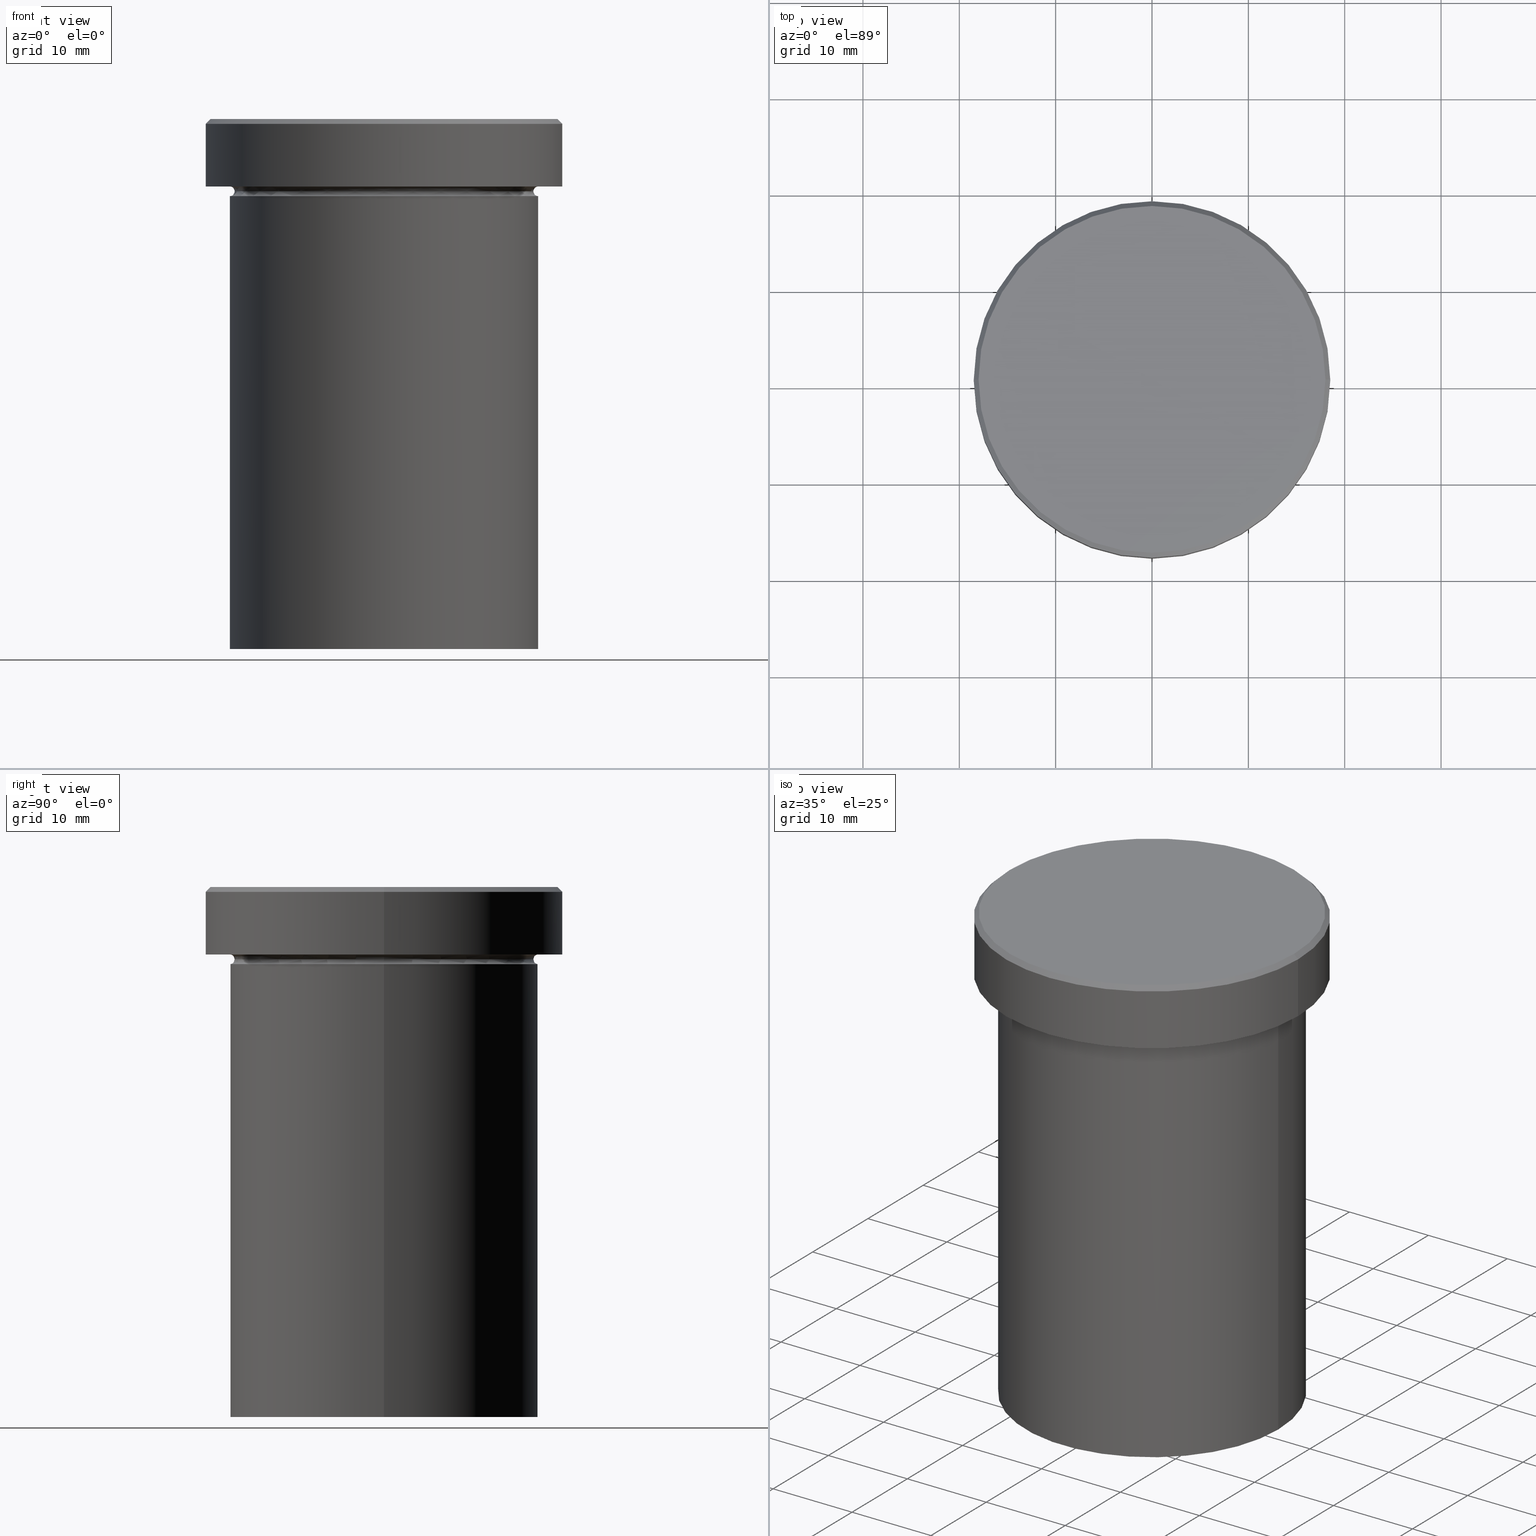
[diagram: canonical four-view strip — front | top / right | iso, engineering-drawing reading convention]
A machine part, canonical four-view strip (front | top / right | iso — engineering-drawing reading convention). The complete STEP part file that produces these views, byte-faithful:
ISO-10303-21;
HEADER;
FILE_DESCRIPTION (( 'STEP AP203' ),
    '1' );
FILE_NAME ('3177.STEP',
    '2024-01-02T19:15:07',
    ( '' ),
    ( '' ),
    'SwSTEP 2.0',
    'SolidWorks 2019',
    '' );
FILE_SCHEMA (( 'CONFIG_CONTROL_DESIGN' ));
ENDSEC;

DATA;
#1 = CARTESIAN_POINT ( 'NONE',  ( 0.000000000000000000, 0.000000000000000000, 0.000000000000000000 ) ) ;
#2 =( LENGTH_UNIT ( ) NAMED_UNIT ( * ) SI_UNIT ( .MILLI., .METRE. ) );
#3 = DIRECTION ( 'NONE',  ( 0.000000000000000000, -1.000000000000000000, 0.000000000000000000 ) ) ;
#4 = CARTESIAN_POINT ( 'NONE',  ( -18.50000000000000000, 2.265596578422603396E-15, -0.5000000000000143219 ) ) ;
#5 = DIRECTION ( 'NONE',  ( -1.000000000000000000, 1.224646799147349509E-16, 0.000000000000000000 ) ) ;
#6 =( NAMED_UNIT ( * ) PLANE_ANGLE_UNIT ( ) SI_UNIT ( $, .RADIAN. ) );
#7 = CARTESIAN_POINT ( 'NONE',  ( 16.00000000000000000, 0.000000000000000000, -7.500000000000000000 ) ) ;
#8 = DIRECTION ( 'NONE',  ( -1.000000000000000000, 0.000000000000000000, -0.000000000000000000 ) ) ;
#9 = AXIS2_PLACEMENT_3D ( 'NONE', #25, #23, #203 ) ;
#10 = LINE ( 'NONE', #346, #45 ) ;
#11 = EDGE_CURVE ( 'NONE', #120, #329, #87, .T. ) ;
#12 = EDGE_CURVE ( 'NONE', #120, #148, #29, .T. ) ;
#13 = CIRCLE ( 'NONE', #351, 0.5000000000000004441 ) ;
#14 = COORDINATED_UNIVERSAL_TIME_OFFSET ( 1, 0, .AHEAD. ) ;
#15 = CC_DESIGN_PERSON_AND_ORGANIZATION_ASSIGNMENT ( #292, #260, ( #298 ) ) ;
#16 = ORIENTED_EDGE ( 'NONE', *, *, #11, .F. ) ;
#17 = DIRECTION ( 'NONE',  ( 1.000000000000000000, 0.000000000000000000, 0.000000000000000000 ) ) ;
#18 = AXIS2_PLACEMENT_3D ( 'NONE', #283, #352, #321 ) ;
#19 = LOCAL_TIME ( 20, 15, 7.000000000000000000, #326 ) ;
#20 = EDGE_LOOP ( 'NONE', ( #344, #82, #402, #115 ) ) ;
#21 = CARTESIAN_POINT ( 'NONE',  ( 0.000000000000000000, 0.000000000000000000, -6.999999999999999112 ) ) ;
#22 = ORIENTED_EDGE ( 'NONE', *, *, #11, .T. ) ;
#23 = DIRECTION ( 'NONE',  ( 0.000000000000000000, 0.000000000000000000, -1.000000000000000000 ) ) ;
#24 = ORIENTED_EDGE ( 'NONE', *, *, #89, .F. ) ;
#25 = CARTESIAN_POINT ( 'NONE',  ( 0.000000000000000000, 0.000000000000000000, -0.5000000000000143219 ) ) ;
#26 = CIRCLE ( 'NONE', #68, 15.50000000000000000 ) ;
#27 = ORIENTED_EDGE ( 'NONE', *, *, #159, .T. ) ;
#28 = CARTESIAN_POINT ( 'NONE',  ( 18.50000000000000000, 0.000000000000000000, -6.999999999999999112 ) ) ;
#29 = LINE ( 'NONE', #382, #145 ) ;
#30 = MANIFOLD_SOLID_BREP ( 'Zkosen�1', #108 ) ;
#31 = EDGE_CURVE ( 'NONE', #49, #375, #122, .T. ) ;
#32 = FACE_OUTER_BOUND ( 'NONE', #93, .T. ) ;
#33 = APPLICATION_PROTOCOL_DEFINITION ( 'international standard', 'config_control_design', 1994, #409 ) ;
#34 = AXIS2_PLACEMENT_3D ( 'NONE', #301, #397, #373 ) ;
#35 = ORIENTED_EDGE ( 'NONE', *, *, #44, .T. ) ;
#36 = FACE_BOUND ( 'NONE', #192, .T. ) ;
#37 = DIRECTION ( 'NONE',  ( 1.000000000000000000, 0.000000000000000000, 0.000000000000000000 ) ) ;
#38 = APPLICATION_PROTOCOL_DEFINITION ( 'international standard', 'config_control_design', 1994, #314 ) ;
#39 = ORIENTED_EDGE ( 'NONE', *, *, #74, .F. ) ;
#40 = DIRECTION ( 'NONE',  ( 0.000000000000000000, 0.000000000000000000, -1.000000000000000000 ) ) ;
#41 = DIRECTION ( 'NONE',  ( -0.000000000000000000, -0.000000000000000000, 1.000000000000000000 ) ) ;
#42 = AXIS2_PLACEMENT_3D ( 'NONE', #290, #70, #65 ) ;
#43 = CALENDAR_DATE ( 2024, 2, 1 ) ;
#44 = EDGE_CURVE ( 'NONE', #399, #118, #190, .T. ) ;
#45 = VECTOR ( 'NONE', #255, 1000.000000000000000 ) ;
#46 = EDGE_CURVE ( 'NONE', #407, #248, #52, .T. ) ;
#47 = CARTESIAN_POINT ( 'NONE',  ( -18.50000000000000000, 2.265596578422603396E-15, -6.999999999999999112 ) ) ;
#48 = DATE_TIME_ROLE ( 'classification_date' ) ;
#49 = VERTEX_POINT ( 'NONE', #126 ) ;
#50 = AXIS2_PLACEMENT_3D ( 'NONE', #217, #62, #280 ) ;
#51 = DIRECTION ( 'NONE',  ( 0.000000000000000000, -0.000000000000000000, 1.000000000000000000 ) ) ;
#52 = CIRCLE ( 'NONE', #252, 0.5000000000000004441 ) ;
#53 = CC_DESIGN_PERSON_AND_ORGANIZATION_ASSIGNMENT ( #214, #398, ( #174 ) ) ;
#54 = EDGE_LOOP ( 'NONE', ( #150, #161, #27, #277 ) ) ;
#55 = FACE_OUTER_BOUND ( 'NONE', #57, .T. ) ;
#56 = CALENDAR_DATE ( 2024, 2, 1 ) ;
#57 = EDGE_LOOP ( 'NONE', ( #215, #384, #121, #125 ) ) ;
#58 = CARTESIAN_POINT ( 'NONE',  ( -17.99999999999998224, 0.000000000000000000, 0.000000000000000000 ) ) ;
#59 = ORIENTED_EDGE ( 'NONE', *, *, #265, .T. ) ;
#60 = DIRECTION ( 'NONE',  ( -0.000000000000000000, -0.000000000000000000, 1.000000000000000000 ) ) ;
#61 = AXIS2_PLACEMENT_3D ( 'NONE', #368, #178, #17 ) ;
#62 = DIRECTION ( 'NONE',  ( -0.000000000000000000, -0.000000000000000000, 1.000000000000000000 ) ) ;
#63 = DIRECTION ( 'NONE',  ( -1.224646799147353207E-16, 1.000000000000000000, 0.000000000000000000 ) ) ;
#64 = DIRECTION ( 'NONE',  ( -0.000000000000000000, -0.000000000000000000, 1.000000000000000000 ) ) ;
#65 = DIRECTION ( 'NONE',  ( 1.000000000000000000, 0.000000000000000000, 0.000000000000000000 ) ) ;
#66 = DIRECTION ( 'NONE',  ( -0.000000000000000000, -0.000000000000000000, 1.000000000000000000 ) ) ;
#67 = DIRECTION ( 'NONE',  ( 0.000000000000000000, 0.000000000000000000, 1.000000000000000000 ) ) ;
#68 = AXIS2_PLACEMENT_3D ( 'NONE', #288, #129, #408 ) ;
#69 = ORIENTED_EDGE ( 'NONE', *, *, #12, .T. ) ;
#70 = DIRECTION ( 'NONE',  ( -0.000000000000000000, -0.000000000000000000, 1.000000000000000000 ) ) ;
#71 = ORIENTED_EDGE ( 'NONE', *, *, #155, .T. ) ;
#72 = PERSON_AND_ORGANIZATION ( #114, #197 ) ;
#73 = CARTESIAN_POINT ( 'NONE',  ( 0.000000000000000000, 0.000000000000000000, -7.500000000000000000 ) ) ;
#74 = EDGE_CURVE ( 'NONE', #181, #375, #10, .T. ) ;
#75 = APPROVAL_ROLE ( '' ) ;
#76 = VECTOR ( 'NONE', #234, 1000.000000000000000 ) ;
#77 = CC_DESIGN_PERSON_AND_ORGANIZATION_ASSIGNMENT ( #86, #369, ( #199 ) ) ;
#78 = ADVANCED_FACE ( 'NONE', ( #32 ), #221, .T. ) ;
#79 = DATE_AND_TIME ( #43, #19 ) ;
#80 = TOROIDAL_SURFACE ( 'NONE', #101, 16.00000000000000000, 0.5000000000000000000 ) ;
#81 = LOCAL_TIME ( 20, 15, 7.000000000000000000, #299 ) ;
#82 = ORIENTED_EDGE ( 'NONE', *, *, #338, .T. ) ;
#83 = DIRECTION ( 'NONE',  ( 1.000000000000000000, 0.000000000000000000, 0.000000000000000000 ) ) ;
#84 = EDGE_LOOP ( 'NONE', ( #273, #90, #69, #99 ) ) ;
#85 = LINE ( 'NONE', #171, #358 ) ;
#86 = PERSON_AND_ORGANIZATION ( #114, #197 ) ;
#87 = CIRCLE ( 'NONE', #222, 16.00000000000000000 ) ;
#88 = DIRECTION ( 'NONE',  ( 0.7071067811865500152, 8.659560562354962440E-17, -0.7071067811865451302 ) ) ;
#89 = EDGE_CURVE ( 'NONE', #181, #315, #275, .T. ) ;
#90 = ORIENTED_EDGE ( 'NONE', *, *, #112, .T. ) ;
#91 = CYLINDRICAL_SURFACE ( 'NONE', #167, 16.00000000000000000 ) ;
#92 = APPROVAL_STATUS ( 'not_yet_approved' ) ;
#93 = EDGE_LOOP ( 'NONE', ( #16, #337 ) ) ;
#94 = DIRECTION ( 'NONE',  ( -1.000000000000000000, 0.000000000000000000, 0.000000000000000000 ) ) ;
#95 = EDGE_CURVE ( 'NONE', #332, #405, #371, .T. ) ;
#96 = CARTESIAN_POINT ( 'NONE',  ( 0.000000000000000000, 0.000000000000000000, -54.99999999999999289 ) ) ;
#97 = AXIS2_PLACEMENT_3D ( 'NONE', #354, #162, #184 ) ;
#98 = ORIENTED_EDGE ( 'NONE', *, *, #135, .T. ) ;
#99 = ORIENTED_EDGE ( 'NONE', *, *, #265, .F. ) ;
#100 = DIRECTION ( 'NONE',  ( -0.000000000000000000, -0.000000000000000000, 1.000000000000000000 ) ) ;
#101 = AXIS2_PLACEMENT_3D ( 'NONE', #73, #294, #324 ) ;
#102 = CARTESIAN_POINT ( 'NONE',  ( 0.000000000000000000, 0.000000000000000000, -0.5000000000000143219 ) ) ;
#103 = FACE_OUTER_BOUND ( 'NONE', #309, .T. ) ;
#104 = EDGE_CURVE ( 'NONE', #218, #148, #130, .T. ) ;
#105 = DIRECTION ( 'NONE',  ( 0.000000000000000000, 0.000000000000000000, -1.000000000000000000 ) ) ;
#106 = CIRCLE ( 'NONE', #61, 16.00000000000000000 ) ;
#107 = APPROVAL_PERSON_ORGANIZATION ( #144, #231, #141 ) ;
#108 = CLOSED_SHELL ( 'NONE', ( #247, #140, #390, #224, #293, #78, #163, #295, #366, #232, #124, #261, #350 ) ) ;
#109 = CARTESIAN_POINT ( 'NONE',  ( 16.00000000000000000, 1.959434878635765131E-15, -6.999999999999999112 ) ) ;
#110 = APPROVAL_STATUS ( 'not_yet_approved' ) ;
#111 = DIRECTION ( 'NONE',  ( 1.000000000000000000, 0.000000000000000000, 0.000000000000000000 ) ) ;
#112 = EDGE_CURVE ( 'NONE', #329, #120, #196, .T. ) ;
#113 = CARTESIAN_POINT ( 'NONE',  ( 0.000000000000000000, 0.000000000000000000, 0.000000000000000000 ) ) ;
#114 = PERSON ( 'NEUR�EN�', 'NEUR�EN�', 'NEUR�EN�', ('NEUR�EN�'), ('NEUR�EN�'), ('NEUR�EN�') ) ;
#115 = ORIENTED_EDGE ( 'NONE', *, *, #374, .F. ) ;
#116 = AXIS2_PLACEMENT_3D ( 'NONE', #391, #105, #357 ) ;
#117 = CARTESIAN_POINT ( 'NONE',  ( 0.000000000000000000, 0.000000000000000000, -7.500000000000000000 ) ) ;
#118 = VERTEX_POINT ( 'NONE', #152 ) ;
#119 = DIRECTION ( 'NONE',  ( -0.000000000000000000, -0.000000000000000000, 1.000000000000000000 ) ) ;
#120 = VERTEX_POINT ( 'NONE', #355 ) ;
#121 = ORIENTED_EDGE ( 'NONE', *, *, #159, .F. ) ;
#122 = CIRCLE ( 'NONE', #132, 18.50000000000000000 ) ;
#123 = CONICAL_SURFACE ( 'NONE', #392, 17.99999999999998224, 0.7853981633974517207 ) ;
#124 = ADVANCED_FACE ( 'NONE', ( #183 ), #80, .F. ) ;
#125 = ORIENTED_EDGE ( 'NONE', *, *, #279, .F. ) ;
#126 = CARTESIAN_POINT ( 'NONE',  ( 18.50000000000000000, 0.000000000000000000, -0.5000000000000143219 ) ) ;
#127 =( NAMED_UNIT ( * ) SI_UNIT ( $, .STERADIAN. ) SOLID_ANGLE_UNIT ( ) );
#128 = DIRECTION ( 'NONE',  ( 1.000000000000000000, 0.000000000000000000, 0.000000000000000000 ) ) ;
#129 = DIRECTION ( 'NONE',  ( -0.000000000000000000, -0.000000000000000000, 1.000000000000000000 ) ) ;
#130 = CIRCLE ( 'NONE', #172, 0.5000000000000004441 ) ;
#131 = LOCAL_TIME ( 20, 15, 7.000000000000000000, #134 ) ;
#132 = AXIS2_PLACEMENT_3D ( 'NONE', #102, #318, #287 ) ;
#133 = PRODUCT_RELATED_PRODUCT_CATEGORY ( 'detail', '', ( #286 ) ) ;
#134 = COORDINATED_UNIVERSAL_TIME_OFFSET ( 1, 0, .AHEAD. ) ;
#135 = EDGE_CURVE ( 'NONE', #329, #248, #323, .T. ) ;
#136 = AXIS2_PLACEMENT_3D ( 'NONE', #307, #240, #94 ) ;
#137 = EDGE_LOOP ( 'NONE', ( #372, #173, #251, #185 ) ) ;
#138 = LOCAL_TIME ( 20, 15, 7.000000000000000000, #14 ) ;
#139 = FACE_OUTER_BOUND ( 'NONE', #54, .T. ) ;
#140 = ADVANCED_FACE ( 'NONE', ( #165 ), #327, .F. ) ;
#141 = APPROVAL_ROLE ( '' ) ;
#142 = CARTESIAN_POINT ( 'NONE',  ( -16.00000000000000000, 1.959434878635765131E-15, -8.000000000000000000 ) ) ;
#143 = FACE_OUTER_BOUND ( 'NONE', #220, .T. ) ;
#144 = PERSON_AND_ORGANIZATION ( #114, #197 ) ;
#145 = VECTOR ( 'NONE', #100, 1000.000000000000000 ) ;
#146 = DIRECTION ( 'NONE',  ( 0.000000000000000000, 0.000000000000000000, -1.000000000000000000 ) ) ;
#147 = AXIS2_PLACEMENT_3D ( 'NONE', #249, #345, #186 ) ;
#148 = VERTEX_POINT ( 'NONE', #259 ) ;
#149 = CARTESIAN_POINT ( 'NONE',  ( 0.000000000000000000, 0.000000000000000000, -7.500000000000000000 ) ) ;
#150 = ORIENTED_EDGE ( 'NONE', *, *, #362, .T. ) ;
#151 = DIRECTION ( 'NONE',  ( -0.000000000000000000, -1.000000000000000000, -0.000000000000000000 ) ) ;
#152 = CARTESIAN_POINT ( 'NONE',  ( 17.99999999999998224, 2.234980408443918426E-15, 0.000000000000000000 ) ) ;
#153 = PLANE ( 'NONE',  #285 ) ;
#154 = APPROVAL_PERSON_ORGANIZATION ( #211, #201, #207 ) ;
#155 = EDGE_CURVE ( 'NONE', #315, #49, #226, .T. ) ;
#156 = DIRECTION ( 'NONE',  ( 1.224646799147353207E-16, 1.000000000000000000, 0.000000000000000000 ) ) ;
#157 = DIRECTION ( 'NONE',  ( 0.000000000000000000, 0.000000000000000000, -1.000000000000000000 ) ) ;
#158 = DIRECTION ( 'NONE',  ( -0.000000000000000000, -0.000000000000000000, 1.000000000000000000 ) ) ;
#159 = EDGE_CURVE ( 'NONE', #375, #49, #164, .T. ) ;
#160 = DIRECTION ( 'NONE',  ( -1.000000000000000000, 0.000000000000000000, 0.000000000000000000 ) ) ;
#161 = ORIENTED_EDGE ( 'NONE', *, *, #74, .T. ) ;
#162 = DIRECTION ( 'NONE',  ( -0.000000000000000000, -0.000000000000000000, 1.000000000000000000 ) ) ;
#163 = ADVANCED_FACE ( 'NONE', ( #400 ), #180, .T. ) ;
#164 = CIRCLE ( 'NONE', #9, 18.50000000000000000 ) ;
#165 = FACE_OUTER_BOUND ( 'NONE', #20, .T. ) ;
#166 = CC_DESIGN_DATE_AND_TIME_ASSIGNMENT ( #79, #168, ( #298 ) ) ;
#167 = AXIS2_PLACEMENT_3D ( 'NONE', #113, #303, #83 ) ;
#168 = DATE_TIME_ROLE ( 'creation_date' ) ;
#169 = EDGE_CURVE ( 'NONE', #118, #399, #335, .T. ) ;
#170 = ORIENTED_EDGE ( 'NONE', *, *, #200, .F. ) ;
#171 = CARTESIAN_POINT ( 'NONE',  ( 17.99999999999998224, 2.204364238465233456E-15, 0.000000000000000000 ) ) ;
#172 = AXIS2_PLACEMENT_3D ( 'NONE', #7, #3, #377 ) ;
#173 = ORIENTED_EDGE ( 'NONE', *, *, #381, .F. ) ;
#174 = PRODUCT_DEFINITION_FORMATION_WITH_SPECIFIED_SOURCE ( 'LIBOVOLN�', '', #286, .NOT_KNOWN. ) ;
#175 = CYLINDRICAL_SURFACE ( 'NONE', #34, 16.00000000000000000 ) ;
#176 = PERSON_AND_ORGANIZATION ( #114, #197 ) ;
#177 = ORIENTED_EDGE ( 'NONE', *, *, #89, .T. ) ;
#178 = DIRECTION ( 'NONE',  ( -0.000000000000000000, -0.000000000000000000, 1.000000000000000000 ) ) ;
#179 = ORIENTED_EDGE ( 'NONE', *, *, #169, .T. ) ;
#180 = PLANE ( 'NONE',  #206 ) ;
#181 = VERTEX_POINT ( 'NONE', #47 ) ;
#182 = DIRECTION ( 'NONE',  ( 1.000000000000000000, 0.000000000000000000, 0.000000000000000000 ) ) ;
#183 = FACE_OUTER_BOUND ( 'NONE', #137, .T. ) ;
#184 = DIRECTION ( 'NONE',  ( 1.000000000000000000, 0.000000000000000000, 0.000000000000000000 ) ) ;
#185 = ORIENTED_EDGE ( 'NONE', *, *, #348, .T. ) ;
#186 = DIRECTION ( 'NONE',  ( 1.000000000000000000, 0.000000000000000000, 0.000000000000000000 ) ) ;
#187 = CC_DESIGN_PERSON_AND_ORGANIZATION_ASSIGNMENT ( #176, #269, ( #174 ) ) ;
#188 = ORIENTED_EDGE ( 'NONE', *, *, #362, .F. ) ;
#189 = DIRECTION ( 'NONE',  ( 1.000000000000000000, 0.000000000000000000, 0.000000000000000000 ) ) ;
#190 = CIRCLE ( 'NONE', #297, 17.99999999999998224 ) ;
#191 = CIRCLE ( 'NONE', #308, 0.5000000000000004441 ) ;
#192 = EDGE_LOOP ( 'NONE', ( #396, #341 ) ) ;
#193 = CARTESIAN_POINT ( 'NONE',  ( -15.50000000000000000, 1.928818708657081344E-15, -7.500000000000000000 ) ) ;
#194 = CARTESIAN_POINT ( 'NONE',  ( 0.000000000000000000, 18.50000000000000000, -6.999999999999999112 ) ) ;
#195 = CARTESIAN_POINT ( 'NONE',  ( -16.00000000000000000, 1.959434878635765131E-15, 0.000000000000000000 ) ) ;
#196 = CIRCLE ( 'NONE', #50, 16.00000000000000000 ) ;
#197 = ORGANIZATION ( 'NEUR�EN�', 'NEUR�EN�', '' ) ;
#198 = CONICAL_SURFACE ( 'NONE', #136, 17.99999999999998224, 0.7853981633974517207 ) ;
#199 = SECURITY_CLASSIFICATION ( '', '', #237 ) ;
#200 = EDGE_CURVE ( 'NONE', #118, #49, #85, .T. ) ;
#201 = APPROVAL ( #110, 'NEUR�EN�' ) ;
#202 = DATE_AND_TIME ( #395, #81 ) ;
#203 = DIRECTION ( 'NONE',  ( 1.000000000000000000, 0.000000000000000000, 0.000000000000000000 ) ) ;
#204 = ORIENTED_EDGE ( 'NONE', *, *, #279, .T. ) ;
#205 = CARTESIAN_POINT ( 'NONE',  ( 0.000000000000000000, 0.000000000000000000, 0.000000000000000000 ) ) ;
#206 = AXIS2_PLACEMENT_3D ( 'NONE', #305, #51, #330 ) ;
#207 = APPROVAL_ROLE ( '' ) ;
#208 = ORIENTED_EDGE ( 'NONE', *, *, #348, .F. ) ;
#209 = ADVANCED_BREP_SHAPE_REPRESENTATION ( '3177', ( #30, #325 ), #263 ) ;
#210 = CARTESIAN_POINT ( 'NONE',  ( 15.50000000000000000, 0.000000000000000000, -7.500000000000000000 ) ) ;
#211 = PERSON_AND_ORGANIZATION ( #114, #197 ) ;
#212 = EDGE_LOOP ( 'NONE', ( #188, #24 ) ) ;
#213 = CARTESIAN_POINT ( 'NONE',  ( 0.000000000000000000, 0.000000000000000000, 0.000000000000000000 ) ) ;
#214 = PERSON_AND_ORGANIZATION ( #114, #197 ) ;
#215 = ORIENTED_EDGE ( 'NONE', *, *, #169, .F. ) ;
#216 = DIRECTION ( 'NONE',  ( 1.000000000000000000, 0.000000000000000000, 0.000000000000000000 ) ) ;
#217 = CARTESIAN_POINT ( 'NONE',  ( 0.000000000000000000, 0.000000000000000000, -54.99999999999999289 ) ) ;
#218 = VERTEX_POINT ( 'NONE', #210 ) ;
#219 = EDGE_CURVE ( 'NONE', #407, #218, #387, .T. ) ;
#220 = EDGE_LOOP ( 'NONE', ( #22, #98, #208, #367 ) ) ;
#221 = PLANE ( 'NONE',  #18 ) ;
#222 = AXIS2_PLACEMENT_3D ( 'NONE', #96, #66, #37 ) ;
#223 = CIRCLE ( 'NONE', #97, 18.50000000000000000 ) ;
#224 = ADVANCED_FACE ( 'NONE', ( #143 ), #175, .T. ) ;
#225 = CARTESIAN_POINT ( 'NONE',  ( 0.000000000000000000, 0.000000000000000000, -6.999999999999999112 ) ) ;
#226 = LINE ( 'NONE', #403, #76 ) ;
#227 = AXIS2_PLACEMENT_3D ( 'NONE', #149, #146, #370 ) ;
#228 = AXIS2_PLACEMENT_3D ( 'NONE', #291, #386, #128 ) ;
#229 = CC_DESIGN_APPROVAL ( #201, ( #199 ) ) ;
#230 = DESIGN_CONTEXT ( 'detailed design', #314, 'design' ) ;
#231 = APPROVAL ( #92, 'NEUR�EN�' ) ;
#232 = ADVANCED_FACE ( 'NONE', ( #342 ), #91, .T. ) ;
#233 = COORDINATED_UNIVERSAL_TIME_OFFSET ( 1, 0, .AHEAD. ) ;
#234 = DIRECTION ( 'NONE',  ( -0.000000000000000000, -0.000000000000000000, 1.000000000000000000 ) ) ;
#235 = ORIENTED_EDGE ( 'NONE', *, *, #46, .T. ) ;
#236 = CARTESIAN_POINT ( 'NONE',  ( -16.00000000000000000, 1.959434878635765131E-15, -54.99999999999999289 ) ) ;
#237 = SECURITY_CLASSIFICATION_LEVEL ( 'unclassified' ) ;
#238 = EDGE_LOOP ( 'NONE', ( #253, #235, #59, #304 ) ) ;
#239 = APPROVAL ( #359, 'NEUR�EN�' ) ;
#240 = DIRECTION ( 'NONE',  ( 0.000000000000000000, 0.000000000000000000, -1.000000000000000000 ) ) ;
#241 = AXIS2_PLACEMENT_3D ( 'NONE', #268, #311, #111 ) ;
#242 = APPROVAL_DATE_TIME ( #331, #231 ) ;
#243 = ORIENTED_EDGE ( 'NONE', *, *, #44, .F. ) ;
#244 = DIRECTION ( 'NONE',  ( -0.000000000000000000, -0.000000000000000000, 1.000000000000000000 ) ) ;
#245 = ORIENTED_EDGE ( 'NONE', *, *, #31, .T. ) ;
#246 = FACE_OUTER_BOUND ( 'NONE', #349, .T. ) ;
#247 = ADVANCED_FACE ( 'NONE', ( #55 ), #198, .T. ) ;
#248 = VERTEX_POINT ( 'NONE', #142 ) ;
#249 = CARTESIAN_POINT ( 'NONE',  ( 0.000000000000000000, 0.000000000000000000, -7.500000000000000000 ) ) ;
#250 = EDGE_CURVE ( 'NONE', #405, #332, #379, .T. ) ;
#251 = ORIENTED_EDGE ( 'NONE', *, *, #104, .T. ) ;
#252 = AXIS2_PLACEMENT_3D ( 'NONE', #289, #156, #5 ) ;
#253 = ORIENTED_EDGE ( 'NONE', *, *, #219, .F. ) ;
#254 = DIRECTION ( 'NONE',  ( 0.000000000000000000, 0.000000000000000000, -1.000000000000000000 ) ) ;
#255 = DIRECTION ( 'NONE',  ( -0.000000000000000000, -0.000000000000000000, 1.000000000000000000 ) ) ;
#256 = DIRECTION ( 'NONE',  ( 1.000000000000000000, 0.000000000000000000, 0.000000000000000000 ) ) ;
#257 = AXIS2_PLACEMENT_3D ( 'NONE', #225, #64, #388 ) ;
#258 = APPROVAL_PERSON_ORGANIZATION ( #72, #239, #75 ) ;
#259 = CARTESIAN_POINT ( 'NONE',  ( 16.00000000000000000, 0.000000000000000000, -8.000000000000000000 ) ) ;
#260 = PERSON_AND_ORGANIZATION_ROLE ( 'creator' ) ;
#261 = ADVANCED_FACE ( 'NONE', ( #340 ), #317, .F. ) ;
#262 = AXIS2_PLACEMENT_3D ( 'NONE', #205, #119, #182 ) ;
#263 =( GEOMETRIC_REPRESENTATION_CONTEXT ( 3 ) GLOBAL_UNCERTAINTY_ASSIGNED_CONTEXT ( ( #296 ) ) GLOBAL_UNIT_ASSIGNED_CONTEXT ( ( #2, #6, #127 ) ) REPRESENTATION_CONTEXT ( 'NONE', 'WORKASPACE' ) );
#264 = CALENDAR_DATE ( 2024, 2, 1 ) ;
#265 = EDGE_CURVE ( 'NONE', #248, #148, #106, .T. ) ;
#266 = CC_DESIGN_APPROVAL ( #239, ( #298 ) ) ;
#267 = ORIENTED_EDGE ( 'NONE', *, *, #374, .T. ) ;
#268 = CARTESIAN_POINT ( 'NONE',  ( 0.000000000000000000, 0.000000000000000000, 0.000000000000000000 ) ) ;
#269 = PERSON_AND_ORGANIZATION_ROLE ( 'creator' ) ;
#270 = ORIENTED_EDGE ( 'NONE', *, *, #95, .F. ) ;
#271 = DIRECTION ( 'NONE',  ( 1.000000000000000000, 0.000000000000000000, 0.000000000000000000 ) ) ;
#272 = CALENDAR_DATE ( 2024, 2, 1 ) ;
#273 = ORIENTED_EDGE ( 'NONE', *, *, #135, .F. ) ;
#274 = DIRECTION ( 'NONE',  ( -1.000000000000000000, 0.000000000000000000, 0.000000000000000000 ) ) ;
#275 = CIRCLE ( 'NONE', #228, 18.50000000000000000 ) ;
#276 = DIRECTION ( 'NONE',  ( -0.7071067811865500152, 0.000000000000000000, -0.7071067811865451302 ) ) ;
#277 = ORIENTED_EDGE ( 'NONE', *, *, #155, .F. ) ;
#278 = LINE ( 'NONE', #58, #282 ) ;
#279 = EDGE_CURVE ( 'NONE', #399, #375, #278, .T. ) ;
#280 = DIRECTION ( 'NONE',  ( 1.000000000000000000, 0.000000000000000000, 0.000000000000000000 ) ) ;
#281 = FACE_OUTER_BOUND ( 'NONE', #238, .T. ) ;
#282 = VECTOR ( 'NONE', #276, 1000.000000000000114 ) ;
#283 = CARTESIAN_POINT ( 'NONE',  ( 0.000000000000000000, 16.00000000000000000, -54.99999999999999289 ) ) ;
#284 = CARTESIAN_POINT ( 'NONE',  ( 0.000000000000000000, 0.000000000000000000, 0.000000000000000000 ) ) ;
#285 = AXIS2_PLACEMENT_3D ( 'NONE', #194, #157, #8 ) ;
#286 = PRODUCT ( '3177', '3177', '', ( #389 ) ) ;
#287 = DIRECTION ( 'NONE',  ( 1.000000000000000000, 0.000000000000000000, 0.000000000000000000 ) ) ;
#288 = CARTESIAN_POINT ( 'NONE',  ( 0.000000000000000000, 0.000000000000000000, -7.500000000000000000 ) ) ;
#289 = CARTESIAN_POINT ( 'NONE',  ( -16.00000000000000000, 1.959434878635765131E-15, -7.500000000000000000 ) ) ;
#290 = CARTESIAN_POINT ( 'NONE',  ( 0.000000000000000000, 0.000000000000000000, -8.000000000000000000 ) ) ;
#291 = CARTESIAN_POINT ( 'NONE',  ( 0.000000000000000000, 0.000000000000000000, -6.999999999999999112 ) ) ;
#292 = PERSON_AND_ORGANIZATION ( #114, #197 ) ;
#293 = ADVANCED_FACE ( 'NONE', ( #139 ), #406, .T. ) ;
#294 = DIRECTION ( 'NONE',  ( -0.000000000000000000, -0.000000000000000000, 1.000000000000000000 ) ) ;
#295 = ADVANCED_FACE ( 'NONE', ( #246 ), #376, .T. ) ;
#296 = UNCERTAINTY_MEASURE_WITH_UNIT (LENGTH_MEASURE( 1.000000000000000082E-05 ), #2, 'distance_accuracy_value', 'NONE');
#297 = AXIS2_PLACEMENT_3D ( 'NONE', #1, #158, #256 ) ;
#298 = PRODUCT_DEFINITION ( 'NEZN�M�', '', #174, #230 ) ;
#299 = COORDINATED_UNIVERSAL_TIME_OFFSET ( 1, 0, .AHEAD. ) ;
#300 = ORIENTED_EDGE ( 'NONE', *, *, #381, .T. ) ;
#301 = CARTESIAN_POINT ( 'NONE',  ( 0.000000000000000000, 0.000000000000000000, 0.000000000000000000 ) ) ;
#302 = AXIS2_PLACEMENT_3D ( 'NONE', #213, #334, #271 ) ;
#303 = DIRECTION ( 'NONE',  ( -0.000000000000000000, -0.000000000000000000, 1.000000000000000000 ) ) ;
#304 = ORIENTED_EDGE ( 'NONE', *, *, #104, .F. ) ;
#305 = CARTESIAN_POINT ( 'NONE',  ( 0.000000000000000000, 0.000000000000000000, 0.000000000000000000 ) ) ;
#306 = ORIENTED_EDGE ( 'NONE', *, *, #338, .F. ) ;
#307 = CARTESIAN_POINT ( 'NONE',  ( 0.000000000000000000, 0.000000000000000000, 0.000000000000000000 ) ) ;
#308 = AXIS2_PLACEMENT_3D ( 'NONE', #385, #151, #254 ) ;
#309 = EDGE_LOOP ( 'NONE', ( #170, #243, #204, #339 ) ) ;
#310 = CC_DESIGN_PERSON_AND_ORGANIZATION_ASSIGNMENT ( #322, #356, ( #286 ) ) ;
#311 = DIRECTION ( 'NONE',  ( -0.000000000000000000, -0.000000000000000000, 1.000000000000000000 ) ) ;
#312 = EDGE_LOOP ( 'NONE', ( #35, #179 ) ) ;
#313 = CARTESIAN_POINT ( 'NONE',  ( -16.00000000000000000, 0.000000000000000000, -6.999999999999999112 ) ) ;
#314 = APPLICATION_CONTEXT ( 'configuration controlled 3d designs of mechanical parts and assemblies' ) ;
#315 = VERTEX_POINT ( 'NONE', #28 ) ;
#316 = CC_DESIGN_DATE_AND_TIME_ASSIGNMENT ( #202, #48, ( #199 ) ) ;
#317 = TOROIDAL_SURFACE ( 'NONE', #227, 16.00000000000000000, 0.5000000000000000000 ) ;
#318 = DIRECTION ( 'NONE',  ( 0.000000000000000000, 0.000000000000000000, -1.000000000000000000 ) ) ;
#319 = CC_DESIGN_APPROVAL ( #231, ( #174 ) ) ;
#320 = CARTESIAN_POINT ( 'NONE',  ( -17.99999999999998224, 0.000000000000000000, 0.000000000000000000 ) ) ;
#321 = DIRECTION ( 'NONE',  ( -1.000000000000000000, 0.000000000000000000, -0.000000000000000000 ) ) ;
#322 = PERSON_AND_ORGANIZATION ( #114, #197 ) ;
#323 = LINE ( 'NONE', #195, #343 ) ;
#324 = DIRECTION ( 'NONE',  ( 1.000000000000000000, 0.000000000000000000, 0.000000000000000000 ) ) ;
#325 = AXIS2_PLACEMENT_3D ( 'NONE', #284, #67, #189 ) ;
#326 = COORDINATED_UNIVERSAL_TIME_OFFSET ( 1, 0, .AHEAD. ) ;
#327 = TOROIDAL_SURFACE ( 'NONE', #116, 16.00000000000000000, 0.5000000000000000000 ) ;
#328 = DATE_AND_TIME ( #264, #131 ) ;
#329 = VERTEX_POINT ( 'NONE', #236 ) ;
#330 = DIRECTION ( 'NONE',  ( 1.000000000000000000, 0.000000000000000000, 0.000000000000000000 ) ) ;
#331 = DATE_AND_TIME ( #56, #138 ) ;
#332 = VERTEX_POINT ( 'NONE', #109 ) ;
#333 = PRODUCT_DEFINITION_SHAPE ( 'NONE', 'NONE',  #298 ) ;
#334 = DIRECTION ( 'NONE',  ( -0.000000000000000000, -0.000000000000000000, 1.000000000000000000 ) ) ;
#335 = CIRCLE ( 'NONE', #302, 17.99999999999998224 ) ;
#336 = DATE_AND_TIME ( #272, #361 ) ;
#337 = ORIENTED_EDGE ( 'NONE', *, *, #112, .F. ) ;
#338 = EDGE_CURVE ( 'NONE', #218, #332, #13, .T. ) ;
#339 = ORIENTED_EDGE ( 'NONE', *, *, #31, .F. ) ;
#340 = FACE_OUTER_BOUND ( 'NONE', #364, .T. ) ;
#341 = ORIENTED_EDGE ( 'NONE', *, *, #95, .T. ) ;
#342 = FACE_OUTER_BOUND ( 'NONE', #84, .T. ) ;
#343 = VECTOR ( 'NONE', #41, 1000.000000000000000 ) ;
#344 = ORIENTED_EDGE ( 'NONE', *, *, #219, .T. ) ;
#345 = DIRECTION ( 'NONE',  ( -0.000000000000000000, -0.000000000000000000, 1.000000000000000000 ) ) ;
#346 = CARTESIAN_POINT ( 'NONE',  ( -18.50000000000000000, 2.265596578422603396E-15, 0.000000000000000000 ) ) ;
#347 = DIRECTION ( 'NONE',  ( -1.000000000000000000, -1.224646799147349509E-16, 0.000000000000000000 ) ) ;
#348 = EDGE_CURVE ( 'NONE', #148, #248, #404, .T. ) ;
#349 = EDGE_LOOP ( 'NONE', ( #39, #177, #71, #245 ) ) ;
#350 = ADVANCED_FACE ( 'NONE', ( #103 ), #123, .T. ) ;
#351 = AXIS2_PLACEMENT_3D ( 'NONE', #365, #63, #347 ) ;
#352 = DIRECTION ( 'NONE',  ( 0.000000000000000000, 0.000000000000000000, -1.000000000000000000 ) ) ;
#353 = CC_DESIGN_SECURITY_CLASSIFICATION ( #199, ( #174 ) ) ;
#354 = CARTESIAN_POINT ( 'NONE',  ( 0.000000000000000000, 0.000000000000000000, -6.999999999999999112 ) ) ;
#355 = CARTESIAN_POINT ( 'NONE',  ( 16.00000000000000000, 0.000000000000000000, -54.99999999999999289 ) ) ;
#356 = PERSON_AND_ORGANIZATION_ROLE ( 'design_owner' ) ;
#357 = DIRECTION ( 'NONE',  ( -1.000000000000000000, 0.000000000000000000, 0.000000000000000000 ) ) ;
#358 = VECTOR ( 'NONE', #88, 1000.000000000000114 ) ;
#359 = APPROVAL_STATUS ( 'not_yet_approved' ) ;
#360 = AXIS2_PLACEMENT_3D ( 'NONE', #21, #60, #274 ) ;
#361 = LOCAL_TIME ( 20, 15, 7.000000000000000000, #233 ) ;
#362 = EDGE_CURVE ( 'NONE', #315, #181, #223, .T. ) ;
#363 = SHAPE_DEFINITION_REPRESENTATION ( #333, #209 ) ;
#364 = EDGE_LOOP ( 'NONE', ( #306, #300, #267, #270 ) ) ;
#365 = CARTESIAN_POINT ( 'NONE',  ( 16.00000000000000000, 1.959434878635765131E-15, -7.500000000000000000 ) ) ;
#366 = ADVANCED_FACE ( 'NONE', ( #36, #378 ), #153, .T. ) ;
#367 = ORIENTED_EDGE ( 'NONE', *, *, #12, .F. ) ;
#368 = CARTESIAN_POINT ( 'NONE',  ( 0.000000000000000000, 0.000000000000000000, -8.000000000000000000 ) ) ;
#369 = PERSON_AND_ORGANIZATION_ROLE ( 'classification_officer' ) ;
#370 = DIRECTION ( 'NONE',  ( -1.000000000000000000, 0.000000000000000000, 0.000000000000000000 ) ) ;
#371 = CIRCLE ( 'NONE', #257, 16.00000000000000000 ) ;
#372 = ORIENTED_EDGE ( 'NONE', *, *, #46, .F. ) ;
#373 = DIRECTION ( 'NONE',  ( 1.000000000000000000, 0.000000000000000000, 0.000000000000000000 ) ) ;
#374 = EDGE_CURVE ( 'NONE', #407, #405, #191, .T. ) ;
#375 = VERTEX_POINT ( 'NONE', #4 ) ;
#376 = CYLINDRICAL_SURFACE ( 'NONE', #241, 18.50000000000000000 ) ;
#377 = DIRECTION ( 'NONE',  ( 0.000000000000000000, 0.000000000000000000, -1.000000000000000000 ) ) ;
#378 = FACE_OUTER_BOUND ( 'NONE', #212, .T. ) ;
#379 = CIRCLE ( 'NONE', #360, 16.00000000000000000 ) ;
#380 = TOROIDAL_SURFACE ( 'NONE', #147, 16.00000000000000000, 0.5000000000000000000 ) ;
#381 = EDGE_CURVE ( 'NONE', #218, #407, #26, .T. ) ;
#382 = CARTESIAN_POINT ( 'NONE',  ( 16.00000000000000000, 0.000000000000000000, 0.000000000000000000 ) ) ;
#383 = CARTESIAN_POINT ( 'NONE',  ( 0.000000000000000000, 0.000000000000000000, 0.000000000000000000 ) ) ;
#384 = ORIENTED_EDGE ( 'NONE', *, *, #200, .T. ) ;
#385 = CARTESIAN_POINT ( 'NONE',  ( -16.00000000000000000, 0.000000000000000000, -7.500000000000000000 ) ) ;
#386 = DIRECTION ( 'NONE',  ( -0.000000000000000000, -0.000000000000000000, 1.000000000000000000 ) ) ;
#387 = CIRCLE ( 'NONE', #394, 15.50000000000000000 ) ;
#388 = DIRECTION ( 'NONE',  ( -1.000000000000000000, 0.000000000000000000, 0.000000000000000000 ) ) ;
#389 = MECHANICAL_CONTEXT ( 'NONE', #409, 'mechanical' ) ;
#390 = ADVANCED_FACE ( 'NONE', ( #281 ), #380, .F. ) ;
#391 = CARTESIAN_POINT ( 'NONE',  ( 0.000000000000000000, 0.000000000000000000, -7.500000000000000000 ) ) ;
#392 = AXIS2_PLACEMENT_3D ( 'NONE', #383, #40, #160 ) ;
#393 = APPROVAL_DATE_TIME ( #328, #239 ) ;
#394 = AXIS2_PLACEMENT_3D ( 'NONE', #117, #244, #216 ) ;
#395 = CALENDAR_DATE ( 2024, 2, 1 ) ;
#396 = ORIENTED_EDGE ( 'NONE', *, *, #250, .T. ) ;
#397 = DIRECTION ( 'NONE',  ( -0.000000000000000000, -0.000000000000000000, 1.000000000000000000 ) ) ;
#398 = PERSON_AND_ORGANIZATION_ROLE ( 'design_supplier' ) ;
#399 = VERTEX_POINT ( 'NONE', #320 ) ;
#400 = FACE_OUTER_BOUND ( 'NONE', #312, .T. ) ;
#401 = APPROVAL_DATE_TIME ( #336, #201 ) ;
#402 = ORIENTED_EDGE ( 'NONE', *, *, #250, .F. ) ;
#403 = CARTESIAN_POINT ( 'NONE',  ( 18.50000000000000000, 0.000000000000000000, 0.000000000000000000 ) ) ;
#404 = CIRCLE ( 'NONE', #42, 16.00000000000000000 ) ;
#405 = VERTEX_POINT ( 'NONE', #313 ) ;
#406 = CYLINDRICAL_SURFACE ( 'NONE', #262, 18.50000000000000000 ) ;
#407 = VERTEX_POINT ( 'NONE', #193 ) ;
#408 = DIRECTION ( 'NONE',  ( 1.000000000000000000, 0.000000000000000000, 0.000000000000000000 ) ) ;
#409 = APPLICATION_CONTEXT ( 'configuration controlled 3d designs of mechanical parts and assemblies' ) ;
ENDSEC;
END-ISO-10303-21;
